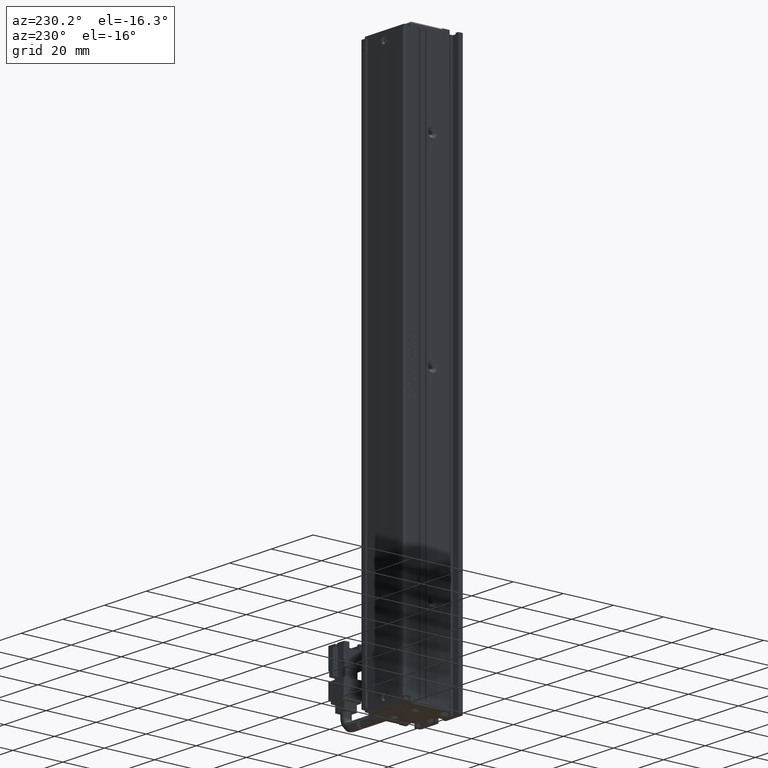
[diagram: clean part render]
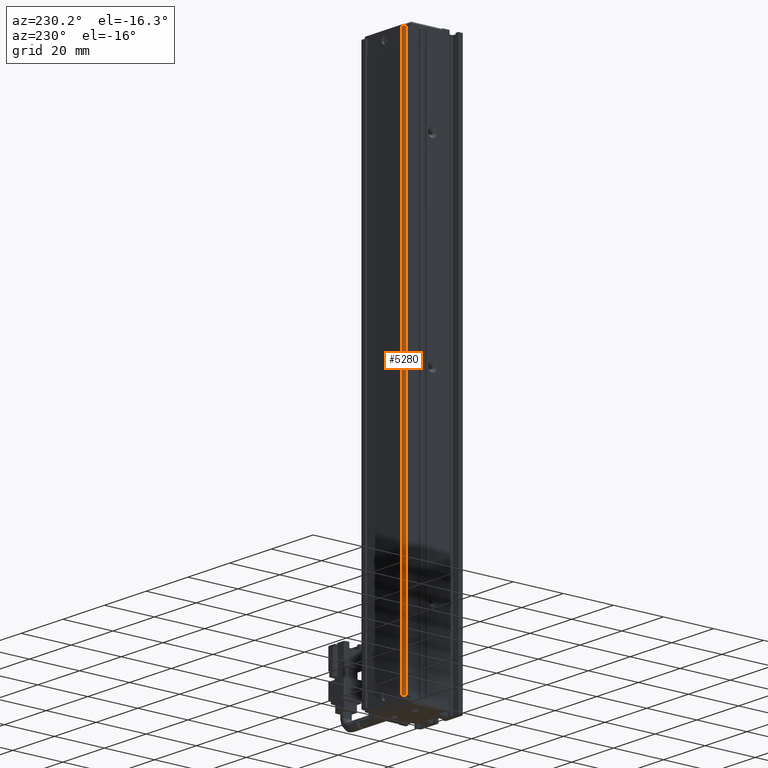
[diagram: same view with one face highlighted and labeled with its STEP entity id]
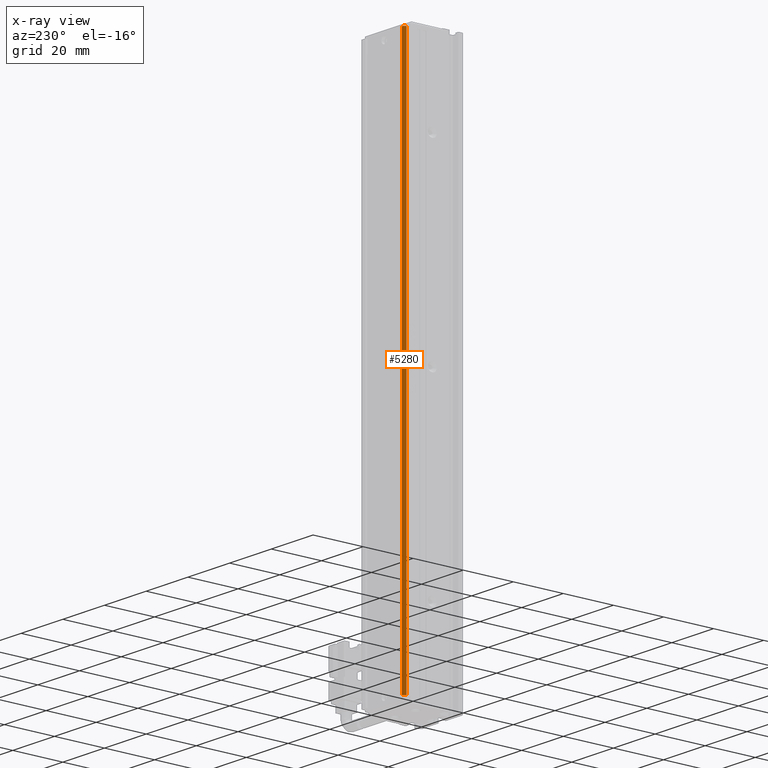
[diagram: x-ray of the same camera — body ghosted, the highlighted face saturated]
A machine part, auxiliary view. The second image highlights one B-rep face of the part: STEP entity #5280.
The next image is the same camera in x-ray: the body ghosted, the highlighted face saturated — about 0% of this face is hidden behind the body in this view.
In plain terms, the highlighted cylindrical surface (edge-blend (fillet) strip) has radius 1 mm, axis along (-0, -0, -1).
Its self-contained STEP definition (entity closure, byte-faithful):
#620 = CARTESIAN_POINT ( 'NONE',  ( 31.42537974683542100, 34.99073232304837700, -222.0000000000000000 ) ) ;
#1230 = EDGE_CURVE ( 'NONE', #5182, #12206, #50290, .T. ) ;
#1472 = VERTEX_POINT ( 'NONE', #620 ) ;
#3287 = DIRECTION ( 'NONE',  ( -0.0000000000000000000, -0.0000000000000000000, -1.000000000000000000 ) ) ;
#3523 = DIRECTION ( 'NONE',  ( -1.000000000000000000, 0.0000000000000000000, 0.0000000000000000000 ) ) ;
#3989 = DIRECTION ( 'NONE',  ( -1.000000000000000000, 0.0000000000000000000, 0.0000000000000000000 ) ) ;
#5014 = ORIENTED_EDGE ( 'NONE', *, *, #1230, .F. ) ;
#5182 = VERTEX_POINT ( 'NONE', #22643 ) ;
#5280 = ADVANCED_FACE ( 'NONE', ( #52172 ), #26475, .T. ) ;
#6123 = EDGE_CURVE ( 'NONE', #1472, #12206, #28768, .T. ) ;
#7146 = LINE ( 'NONE', #18381, #53099 ) ;
#9763 = ORIENTED_EDGE ( 'NONE', *, *, #18885, .T. ) ;
#9998 = VERTEX_POINT ( 'NONE', #42826 ) ;
#11303 = ORIENTED_EDGE ( 'NONE', *, *, #6123, .T. ) ;
#11427 = CARTESIAN_POINT ( 'NONE',  ( 31.42537974683542100, 33.99073232304837000, -6.000000000000005300 ) ) ;
#12206 = VERTEX_POINT ( 'NONE', #49029 ) ;
#15649 = DIRECTION ( 'NONE',  ( 0.0000000000000000000, 0.0000000000000000000, 1.000000000000000000 ) ) ;
#18285 = AXIS2_PLACEMENT_3D ( 'NONE', #19732, #48897, #19380 ) ;
#18381 = CARTESIAN_POINT ( 'NONE',  ( 31.42537974683542100, 34.99073232304837000, -6.000000000000005300 ) ) ;
#18885 = EDGE_CURVE ( 'NONE', #5182, #9998, #22956, .T. ) ;
#19380 = DIRECTION ( 'NONE',  ( -1.000000000000000000, 0.0000000000000000000, 0.0000000000000000000 ) ) ;
#19732 = CARTESIAN_POINT ( 'NONE',  ( 31.42537974683542100, 33.99073232304837000, -8.000000000000007100 ) ) ;
#22643 = CARTESIAN_POINT ( 'NONE',  ( 30.42537974683542500, 33.99073232304837000, -8.000000000000007100 ) ) ;
#22956 = CIRCLE ( 'NONE', #18285, 1.000000000000000900 ) ;
#26475 = CYLINDRICAL_SURFACE ( 'NONE', #38940, 1.000000000000000900 ) ;
#27226 = VECTOR ( 'NONE', #48756, 1000.000000000000000 ) ;
#28571 = CARTESIAN_POINT ( 'NONE',  ( 31.42537974683542100, 33.99073232304837000, -222.0000000000000000 ) ) ;
#28768 = CIRCLE ( 'NONE', #30223, 1.000000000000000900 ) ;
#30223 = AXIS2_PLACEMENT_3D ( 'NONE', #28571, #15649, #3523 ) ;
#33870 = ORIENTED_EDGE ( 'NONE', *, *, #38421, .T. ) ;
#38421 = EDGE_CURVE ( 'NONE', #9998, #1472, #7146, .T. ) ;
#38940 = AXIS2_PLACEMENT_3D ( 'NONE', #11427, #3287, #3989 ) ;
#42826 = CARTESIAN_POINT ( 'NONE',  ( 31.42537974683542100, 34.99073232304837700, -8.000000000000007100 ) ) ;
#42907 = DIRECTION ( 'NONE',  ( -0.0000000000000000000, -0.0000000000000000000, -1.000000000000000000 ) ) ;
#46415 = EDGE_LOOP ( 'NONE', ( #11303, #5014, #9763, #33870 ) ) ;
#48756 = DIRECTION ( 'NONE',  ( -0.0000000000000000000, -0.0000000000000000000, -1.000000000000000000 ) ) ;
#48897 = DIRECTION ( 'NONE',  ( -0.0000000000000000000, -0.0000000000000000000, -1.000000000000000000 ) ) ;
#49029 = CARTESIAN_POINT ( 'NONE',  ( 30.42537974683542500, 33.99073232304837000, -222.0000000000000000 ) ) ;
#49099 = CARTESIAN_POINT ( 'NONE',  ( 30.42537974683542500, 33.99073232304837000, -6.000000000000005300 ) ) ;
#50290 = LINE ( 'NONE', #49099, #27226 ) ;
#52172 = FACE_OUTER_BOUND ( 'NONE', #46415, .T. ) ;
#53099 = VECTOR ( 'NONE', #42907, 1000.000000000000000 ) ;